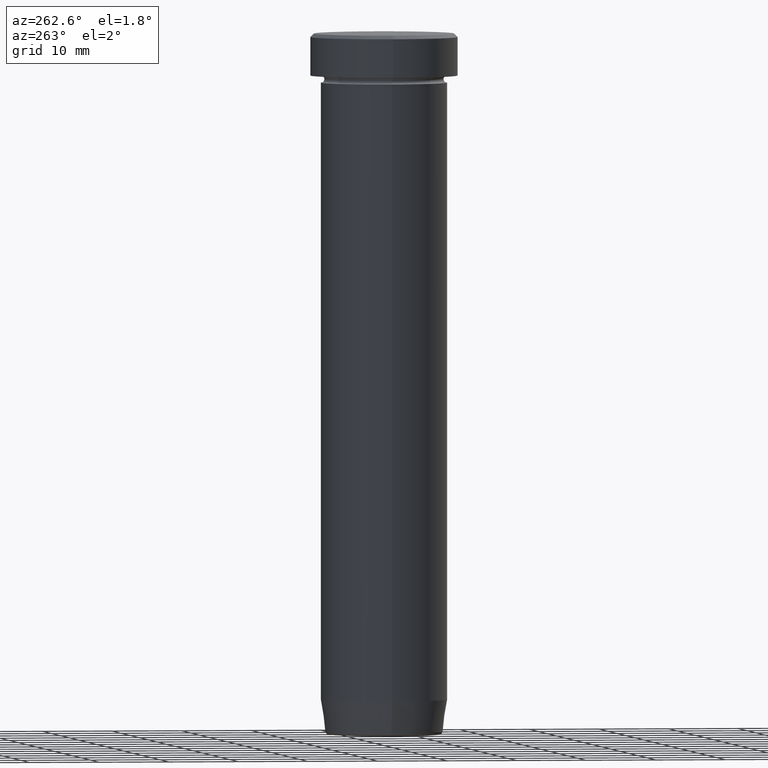
[diagram: clean part render]
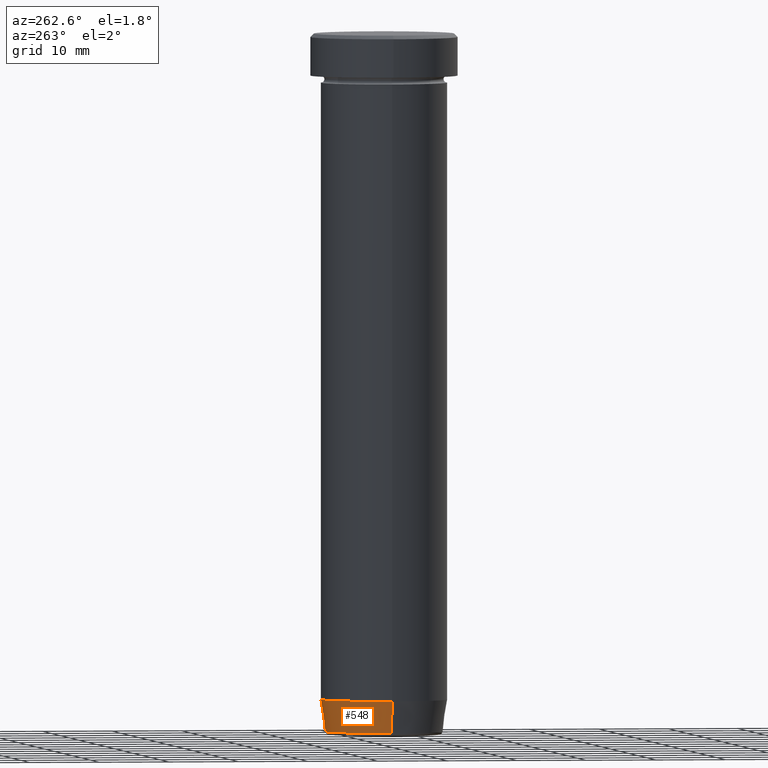
[diagram: same view with one face highlighted and labeled with its STEP entity id]
A machine part, auxiliary view. The second image highlights one B-rep face of the part: STEP entity #548.
In plain terms, the highlighted conical surface has half-angle 8 deg.
Its self-contained STEP definition (entity closure, byte-faithful):
#7 = VECTOR ( 'NONE', #461, 1000.000000000000000 ) ;
#17 = CARTESIAN_POINT ( 'NONE',  ( 0.000000000000000000, 0.000000000000000000, -100.0000000000000000 ) ) ;
#26 = VERTEX_POINT ( 'NONE', #55 ) ;
#55 = CARTESIAN_POINT ( 'NONE',  ( 8.357786491950712104, 0.000000000000000000, -99.56958655048003948 ) ) ;
#57 = DIRECTION ( 'NONE',  ( -0.000000000000000000, -0.000000000000000000, 1.000000000000000000 ) ) ;
#69 = LINE ( 'NONE', #415, #7 ) ;
#88 = CARTESIAN_POINT ( 'NONE',  ( 0.000000000000000000, 0.000000000000000000, -99.56958655048003948 ) ) ;
#91 = CIRCLE ( 'NONE', #315, 9.000000000000000000 ) ;
#93 = EDGE_CURVE ( 'NONE', #582, #459, #69, .T. ) ;
#96 = DIRECTION ( 'NONE',  ( -1.000000000000000000, 0.000000000000000000, 0.000000000000000000 ) ) ;
#101 = VECTOR ( 'NONE', #449, 1000.000000000000000 ) ;
#123 = ORIENTED_EDGE ( 'NONE', *, *, #457, .F. ) ;
#142 = FACE_OUTER_BOUND ( 'NONE', #214, .T. ) ;
#144 = ORIENTED_EDGE ( 'NONE', *, *, #93, .T. ) ;
#185 = ORIENTED_EDGE ( 'NONE', *, *, #570, .F. ) ;
#204 = CONICAL_SURFACE ( 'NONE', #497, 8.297295826488038983, 0.1396263401595468356 ) ;
#214 = EDGE_LOOP ( 'NONE', ( #518, #144, #185, #123 ) ) ;
#241 = CARTESIAN_POINT ( 'NONE',  ( 0.000000000000000000, 0.000000000000000000, -95.00000000000000000 ) ) ;
#266 = VERTEX_POINT ( 'NONE', #487 ) ;
#278 = CARTESIAN_POINT ( 'NONE',  ( -9.000000000000000000, 1.102182119232617714E-15, -95.00000000000000000 ) ) ;
#315 = AXIS2_PLACEMENT_3D ( 'NONE', #241, #559, #378 ) ;
#378 = DIRECTION ( 'NONE',  ( 1.000000000000000000, 0.000000000000000000, 0.000000000000000000 ) ) ;
#413 = EDGE_CURVE ( 'NONE', #26, #582, #451, .T. ) ;
#415 = CARTESIAN_POINT ( 'NONE',  ( -8.297295826488038983, 1.016125677548726948E-15, -100.0000000000000000 ) ) ;
#449 = DIRECTION ( 'NONE',  ( 0.1391731009600659097, 0.000000000000000000, 0.9902680687415702510 ) ) ;
#451 = CIRCLE ( 'NONE', #544, 8.357786491950712104 ) ;
#455 = DIRECTION ( 'NONE',  ( -0.000000000000000000, -0.000000000000000000, 1.000000000000000000 ) ) ;
#457 = EDGE_CURVE ( 'NONE', #26, #266, #499, .T. ) ;
#459 = VERTEX_POINT ( 'NONE', #278 ) ;
#461 = DIRECTION ( 'NONE',  ( -0.1391731009600659097, 1.704378926181561528E-17, 0.9902680687415702510 ) ) ;
#487 = CARTESIAN_POINT ( 'NONE',  ( 9.000000000000000000, 0.000000000000000000, -95.00000000000000000 ) ) ;
#497 = AXIS2_PLACEMENT_3D ( 'NONE', #17, #57, #552 ) ;
#499 = LINE ( 'NONE', #542, #101 ) ;
#518 = ORIENTED_EDGE ( 'NONE', *, *, #413, .T. ) ;
#542 = CARTESIAN_POINT ( 'NONE',  ( 8.297295826488038983, 0.000000000000000000, -100.0000000000000000 ) ) ;
#544 = AXIS2_PLACEMENT_3D ( 'NONE', #88, #455, #96 ) ;
#548 = ADVANCED_FACE ( 'NONE', ( #142 ), #204, .T. ) ;
#552 = DIRECTION ( 'NONE',  ( 1.000000000000000000, 0.000000000000000000, 0.000000000000000000 ) ) ;
#559 = DIRECTION ( 'NONE',  ( -0.000000000000000000, -0.000000000000000000, 1.000000000000000000 ) ) ;
#564 = CARTESIAN_POINT ( 'NONE',  ( -8.357786491950712104, 1.062857883382530313E-15, -99.56958655048003948 ) ) ;
#570 = EDGE_CURVE ( 'NONE', #266, #459, #91, .T. ) ;
#582 = VERTEX_POINT ( 'NONE', #564 ) ;